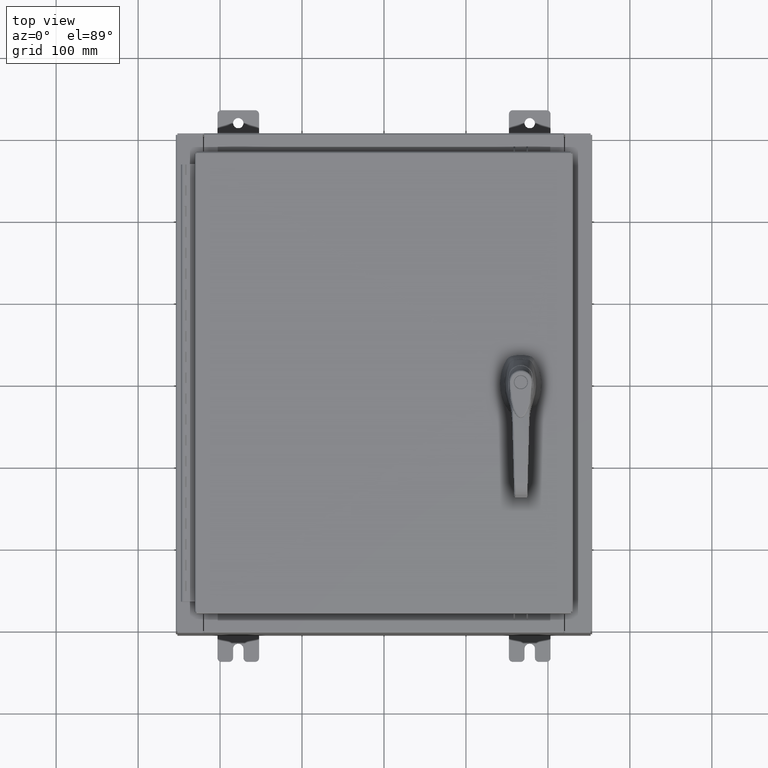
[diagram: clean part render]
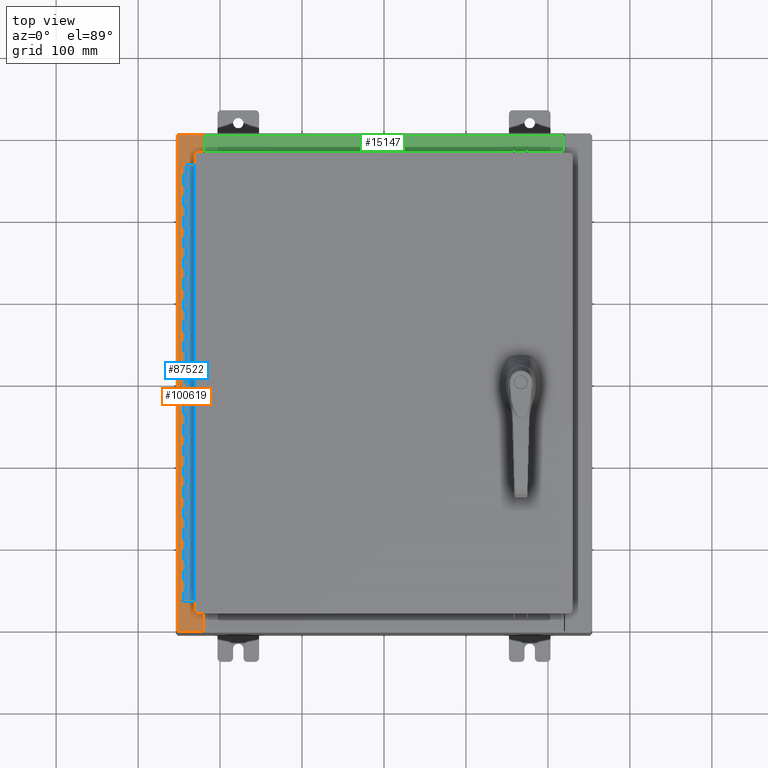
[diagram: same view with three faces highlighted in distinct colors, each labeled with its STEP entity id]
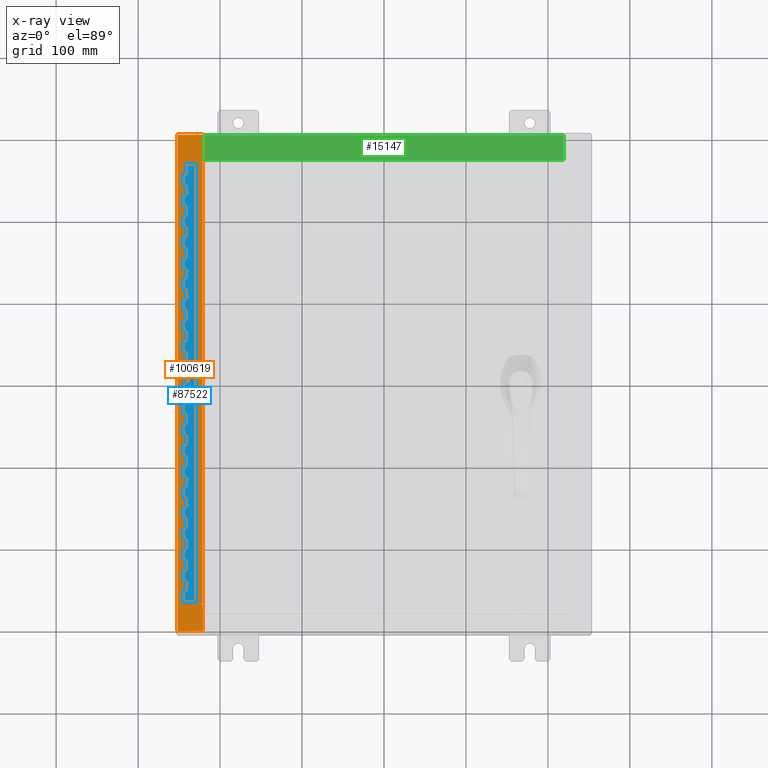
[diagram: x-ray of the same camera — body ghosted, the three highlighted faces saturated]
A machine part, top view with three faces highlighted in distinct colors.
The next image is the same camera in x-ray (body ghosted, the three faces saturated) — at least one of them is partly hidden behind the body in this view.
Their STEP definitions:

[orange] entity #100619 — the highlighted planar face has unit normal (0, 0, -1).
#132 = AXIS2_PLACEMENT_3D ( 'NONE', #17925, #79006, #26818 ) ;
#1032 = CARTESIAN_POINT ( 'NONE',  ( -8.750050000000030100, 10.63109999999999800, 7.925300000000008900 ) ) ;
#2446 = LINE ( 'NONE', #64907, #69604 ) ;
#3976 = DIRECTION ( 'NONE',  ( 1.000000000000000000, 0.0000000000000000000, 0.0000000000000000000 ) ) ;
#7071 = DIRECTION ( 'NONE',  ( 1.000000000000000000, 0.0000000000000000000, 0.0000000000000000000 ) ) ;
#7605 = DIRECTION ( 'NONE',  ( -1.000000000000000000, 0.0000000000000000000, 0.0000000000000000000 ) ) ;
#7962 = LINE ( 'NONE', #22063, #54593 ) ;
#8975 = DIRECTION ( 'NONE',  ( -1.000000000000000000, 0.0000000000000000000, -7.132762385546378400E-015 ) ) ;
#9460 = DIRECTION ( 'NONE',  ( 1.000000000000000000, 1.783190596386595000E-015, 7.132762385546378400E-015 ) ) ;
#9786 = ORIENTED_EDGE ( 'NONE', *, *, #27281, .T. ) ;
#10655 = LINE ( 'NONE', #12887, #109287 ) ;
#12458 = CARTESIAN_POINT ( 'NONE',  ( -9.912300000000028500, -11.92529999999999600, 7.925300000000000000 ) ) ;
#12887 = CARTESIAN_POINT ( 'NONE',  ( -8.750050000000030100, 10.59375000000000000, 7.925300000000008900 ) ) ;
#13064 = ORIENTED_EDGE ( 'NONE', *, *, #97483, .F. ) ;
#16320 = EDGE_CURVE ( 'NONE', #75074, #93818, #101345, .T. ) ;
#17925 = CARTESIAN_POINT ( 'NONE',  ( -8.750050000000030100, 10.61242500000000000, 7.925300000000008900 ) ) ;
#17928 = ORIENTED_EDGE ( 'NONE', *, *, #71573, .T. ) ;
#18241 = VECTOR ( 'NONE', #9460, 39.37007874015748100 ) ;
#18592 = VECTOR ( 'NONE', #41529, 39.37007874015748100 ) ;
#21600 = VERTEX_POINT ( 'NONE', #92635 ) ;
#21685 = AXIS2_PLACEMENT_3D ( 'NONE', #35175, #61434, #8975 ) ;
#22063 = CARTESIAN_POINT ( 'NONE',  ( -8.712700000000030100, 10.59375000000000200, 7.925300000000008900 ) ) ;
#24022 = ORIENTED_EDGE ( 'NONE', *, *, #43438, .F. ) ;
#26157 = ORIENTED_EDGE ( 'NONE', *, *, #34889, .T. ) ;
#26818 = DIRECTION ( 'NONE',  ( 1.000000000000000000, 0.0000000000000000000, 0.0000000000000000000 ) ) ;
#27281 = EDGE_CURVE ( 'NONE', #105447, #49525, #41635, .T. ) ;
#27900 = CARTESIAN_POINT ( 'NONE',  ( -8.699700000000028400, 10.63110000000000200, 7.925300000000008900 ) ) ;
#29650 = EDGE_CURVE ( 'NONE', #105447, #68000, #90405, .T. ) ;
#30752 = LINE ( 'NONE', #112504, #97700 ) ;
#31509 = VECTOR ( 'NONE', #97764, 39.37007874015748100 ) ;
#32874 = CIRCLE ( 'NONE', #106388, 0.01867499999999949400 ) ;
#32898 = ORIENTED_EDGE ( 'NONE', *, *, #89551, .T. ) ;
#34889 = EDGE_CURVE ( 'NONE', #67996, #21600, #108958, .T. ) ;
#35175 = CARTESIAN_POINT ( 'NONE',  ( -5.679009539018279500E-014, 0.0000000000000000000, 7.925300000000071100 ) ) ;
#41529 = DIRECTION ( 'NONE',  ( 0.0000000000000000000, 1.000000000000000000, 0.0000000000000000000 ) ) ;
#41635 = LINE ( 'NONE', #44427, #18241 ) ;
#43438 = EDGE_CURVE ( 'NONE', #93818, #76260, #10655, .T. ) ;
#43867 = VERTEX_POINT ( 'NONE', #88067 ) ;
#44427 = CARTESIAN_POINT ( 'NONE',  ( -3.552501257109376000E-014, -11.92529999999998000, 7.925300000000071100 ) ) ;
#45969 = DIRECTION ( 'NONE',  ( 0.0000000000000000000, 1.000000000000000000, 0.0000000000000000000 ) ) ;
#49525 = VERTEX_POINT ( 'NONE', #82046 ) ;
#49920 = ORIENTED_EDGE ( 'NONE', *, *, #63145, .F. ) ;
#50011 = CARTESIAN_POINT ( 'NONE',  ( -9.912300000000028500, 11.92530000000000000, 7.925300000000000000 ) ) ;
#50824 = CARTESIAN_POINT ( 'NONE',  ( -8.750050000000030100, -10.61242499999999300, 7.925300000000008900 ) ) ;
#50953 = CARTESIAN_POINT ( 'NONE',  ( -8.750050000000030100, -10.63109999999999300, 7.925300000000008900 ) ) ;
#52666 = PLANE ( 'NONE',  #21685 ) ;
#54593 = VECTOR ( 'NONE', #91926, 39.37007874015748100 ) ;
#56412 = EDGE_LOOP ( 'NONE', ( #99771, #26157, #17928, #79602, #9786, #32898, #94561, #13064, #49920, #113704, #24022, #63625 ) ) ;
#56984 = EDGE_CURVE ( 'NONE', #76260, #109835, #7962, .T. ) ;
#58114 = VECTOR ( 'NONE', #7071, 39.37007874015748100 ) ;
#58337 = FACE_OUTER_BOUND ( 'NONE', #56412, .T. ) ;
#59582 = DIRECTION ( 'NONE',  ( 1.000000000000000000, 0.0000000000000000000, 0.0000000000000000000 ) ) ;
#61434 = DIRECTION ( 'NONE',  ( 7.132762385546378400E-015, 0.0000000000000000000, -1.000000000000000000 ) ) ;
#63145 = EDGE_CURVE ( 'NONE', #109835, #68127, #30752, .T. ) ;
#63625 = ORIENTED_EDGE ( 'NONE', *, *, #16320, .F. ) ;
#64458 = VECTOR ( 'NONE', #92362, 39.37007874015748100 ) ;
#64907 = CARTESIAN_POINT ( 'NONE',  ( -5.679009539018279500E-014, 11.92530000000000000, 7.925300000000071100 ) ) ;
#65291 = DIRECTION ( 'NONE',  ( -1.000000000000000000, 0.0000000000000000000, -7.132762385546378400E-015 ) ) ;
#66190 = CARTESIAN_POINT ( 'NONE',  ( -8.712700000000030100, -10.59374999999999300, 7.925300000000008900 ) ) ;
#67996 = VERTEX_POINT ( 'NONE', #100051 ) ;
#68000 = VERTEX_POINT ( 'NONE', #50011 ) ;
#68127 = VERTEX_POINT ( 'NONE', #103839 ) ;
#68337 = CARTESIAN_POINT ( 'NONE',  ( -8.750050000000030100, -10.63109999999999300, 7.925300000000008900 ) ) ;
#69604 = VECTOR ( 'NONE', #65291, 39.37007874015748100 ) ;
#71573 = EDGE_CURVE ( 'NONE', #21600, #68000, #2446, .T. ) ;
#75074 = VERTEX_POINT ( 'NONE', #1032 ) ;
#76260 = VERTEX_POINT ( 'NONE', #85463 ) ;
#77807 = LINE ( 'NONE', #27900, #31509 ) ;
#79006 = DIRECTION ( 'NONE',  ( -7.132762385546378400E-015, -0.0000000000000000000, 1.000000000000000000 ) ) ;
#79602 = ORIENTED_EDGE ( 'NONE', *, *, #29650, .F. ) ;
#80604 = LINE ( 'NONE', #98224, #101257 ) ;
#80991 = EDGE_CURVE ( 'NONE', #93451, #43867, #101934, .T. ) ;
#82046 = CARTESIAN_POINT ( 'NONE',  ( -8.699700000000028400, -11.92529999999999500, 7.925300000000008900 ) ) ;
#83505 = CARTESIAN_POINT ( 'NONE',  ( -9.912300000000028500, 11.92530000000000000, 7.925300000000000000 ) ) ;
#85463 = CARTESIAN_POINT ( 'NONE',  ( -8.712700000000030100, 10.59375000000000000, 7.925300000000008900 ) ) ;
#88067 = CARTESIAN_POINT ( 'NONE',  ( -8.699700000000028400, -10.63109999999999300, 7.925300000000008900 ) ) ;
#89551 = EDGE_CURVE ( 'NONE', #49525, #43867, #80604, .T. ) ;
#90405 = LINE ( 'NONE', #83505, #64458 ) ;
#91926 = DIRECTION ( 'NONE',  ( -0.0000000000000000000, -1.000000000000000000, -0.0000000000000000000 ) ) ;
#92362 = DIRECTION ( 'NONE',  ( -0.0000000000000000000, 1.000000000000000000, -0.0000000000000000000 ) ) ;
#92635 = CARTESIAN_POINT ( 'NONE',  ( -8.699700000000028400, 11.92530000000000000, 7.925300000000008900 ) ) ;
#93451 = VERTEX_POINT ( 'NONE', #50953 ) ;
#93748 = CARTESIAN_POINT ( 'NONE',  ( -8.699700000000028400, 0.0000000000000000000, 7.925300000000008900 ) ) ;
#93818 = VERTEX_POINT ( 'NONE', #110023 ) ;
#94561 = ORIENTED_EDGE ( 'NONE', *, *, #80991, .F. ) ;
#95804 = EDGE_CURVE ( 'NONE', #67996, #75074, #77807, .T. ) ;
#97483 = EDGE_CURVE ( 'NONE', #68127, #93451, #32874, .T. ) ;
#97700 = VECTOR ( 'NONE', #7605, 39.37007874015748100 ) ;
#97764 = DIRECTION ( 'NONE',  ( -1.000000000000000000, -4.340572780399910900E-014, 0.0000000000000000000 ) ) ;
#98224 = CARTESIAN_POINT ( 'NONE',  ( -8.699700000000028400, 0.0000000000000000000, 7.925300000000008900 ) ) ;
#99771 = ORIENTED_EDGE ( 'NONE', *, *, #95804, .F. ) ;
#100051 = CARTESIAN_POINT ( 'NONE',  ( -8.699700000000028400, 10.63110000000000200, 7.925300000000008900 ) ) ;
#100619 = ADVANCED_FACE ( 'NONE', ( #58337 ), #52666, .F. ) ;
#101257 = VECTOR ( 'NONE', #45969, 39.37007874015748100 ) ;
#101345 = CIRCLE ( 'NONE', #132, 0.01867499999999949400 ) ;
#101934 = LINE ( 'NONE', #68337, #58114 ) ;
#103839 = CARTESIAN_POINT ( 'NONE',  ( -8.750050000000030100, -10.59374999999999300, 7.925300000000008900 ) ) ;
#105447 = VERTEX_POINT ( 'NONE', #12458 ) ;
#106388 = AXIS2_PLACEMENT_3D ( 'NONE', #50824, #111989, #59582 ) ;
#108958 = LINE ( 'NONE', #93748, #18592 ) ;
#109287 = VECTOR ( 'NONE', #3976, 39.37007874015748100 ) ;
#109835 = VERTEX_POINT ( 'NONE', #66190 ) ;
#110023 = CARTESIAN_POINT ( 'NONE',  ( -8.750050000000030100, 10.59375000000000000, 7.925300000000008900 ) ) ;
#111989 = DIRECTION ( 'NONE',  ( -7.132762385546378400E-015, -0.0000000000000000000, 1.000000000000000000 ) ) ;
#112504 = CARTESIAN_POINT ( 'NONE',  ( -8.712700000000030100, -10.59374999999999300, 7.925300000000008900 ) ) ;
#113704 = ORIENTED_EDGE ( 'NONE', *, *, #56984, .F. ) ;

[blue] entity #87522 — the highlighted planar face has unit normal (-0, -0, 1).
#23 = ORIENTED_EDGE ( 'NONE', *, *, #20417, .F. ) ;
#262 = ORIENTED_EDGE ( 'NONE', *, *, #88565, .F. ) ;
#270 = CARTESIAN_POINT ( 'NONE',  ( -0.6869999999999978300, 0.6754999999999996600, 0.0000000000000000000 ) ) ;
#624 = VECTOR ( 'NONE', #9483, 39.37007874015748100 ) ;
#759 = LINE ( 'NONE', #71837, #111835 ) ;
#965 = ORIENTED_EDGE ( 'NONE', *, *, #31173, .F. ) ;
#1111 = ORIENTED_EDGE ( 'NONE', *, *, #77056, .F. ) ;
#1219 = DIRECTION ( 'NONE',  ( 0.0000000000000000000, -0.0000000000000000000, -1.000000000000000000 ) ) ;
#1270 = LINE ( 'NONE', #26786, #91713 ) ;
#1325 = CARTESIAN_POINT ( 'NONE',  ( -0.6869999999999978300, 0.6754999999999996600, -21.00000000000000000 ) ) ;
#1473 = EDGE_CURVE ( 'NONE', #16659, #15776, #1270, .T. ) ;
#1770 = ORIENTED_EDGE ( 'NONE', *, *, #41053, .F. ) ;
#2193 = EDGE_CURVE ( 'NONE', #61879, #11695, #9523, .T. ) ;
#2302 = LINE ( 'NONE', #101420, #43617 ) ;
#2531 = DIRECTION ( 'NONE',  ( 3.389037039080723100E-015, 1.000000000000000000, -0.0000000000000000000 ) ) ;
#2552 = CARTESIAN_POINT ( 'NONE',  ( -0.6869999999999982800, 0.5504999999999997700, -4.500000000000000000 ) ) ;
#2626 = CARTESIAN_POINT ( 'NONE',  ( -0.6869999999999982800, 0.5504999999999997700, -19.50000000000000000 ) ) ;
#2729 = EDGE_CURVE ( 'NONE', #25672, #103506, #110806, .T. ) ;
#3007 = LINE ( 'NONE', #1325, #26494 ) ;
#3030 = VERTEX_POINT ( 'NONE', #17477 ) ;
#3082 = CARTESIAN_POINT ( 'NONE',  ( -0.6869999999999978300, 0.6754999999999996600, -21.00000000000000000 ) ) ;
#3320 = VECTOR ( 'NONE', #39002, 39.37007874015748100 ) ;
#3749 = VERTEX_POINT ( 'NONE', #52255 ) ;
#3995 = VECTOR ( 'NONE', #13692, 39.37007874015748100 ) ;
#4174 = LINE ( 'NONE', #59647, #73992 ) ;
#4316 = ORIENTED_EDGE ( 'NONE', *, *, #39468, .F. ) ;
#4364 = CARTESIAN_POINT ( 'NONE',  ( -0.6869999999999978300, 0.6754999999999996600, -6.499999999999999100 ) ) ;
#4399 = ORIENTED_EDGE ( 'NONE', *, *, #66099, .T. ) ;
#4887 = CARTESIAN_POINT ( 'NONE',  ( -0.6869999999999978300, 0.6754999999999996600, -14.00000000000000000 ) ) ;
#5274 = CARTESIAN_POINT ( 'NONE',  ( -0.6869999999999973900, 0.8004999999999995500, -9.500000000000000000 ) ) ;
#5420 = ORIENTED_EDGE ( 'NONE', *, *, #84962, .T. ) ;
#5517 = EDGE_CURVE ( 'NONE', #85069, #12043, #35409, .T. ) ;
#5555 = LINE ( 'NONE', #79864, #44085 ) ;
#5611 = ORIENTED_EDGE ( 'NONE', *, *, #18185, .F. ) ;
#5706 = ORIENTED_EDGE ( 'NONE', *, *, #32379, .F. ) ;
#5755 = CARTESIAN_POINT ( 'NONE',  ( -0.6869999999999982800, 0.5504999999999997700, -20.00000000000000000 ) ) ;
#5835 = CARTESIAN_POINT ( 'NONE',  ( -0.6869999999999978300, 0.6754999999999996600, -18.50000000000000000 ) ) ;
#5872 = LINE ( 'NONE', #21435, #75663 ) ;
#5877 = EDGE_CURVE ( 'NONE', #24980, #32617, #62626, .T. ) ;
#5982 = LINE ( 'NONE', #83418, #99142 ) ;
#6203 = LINE ( 'NONE', #44414, #50184 ) ;
#6755 = ORIENTED_EDGE ( 'NONE', *, *, #8772, .F. ) ;
#6823 = CARTESIAN_POINT ( 'NONE',  ( -0.6869999999999978300, 0.6754999999999996600, -21.00000000000000000 ) ) ;
#7036 = DIRECTION ( 'NONE',  ( -3.389037039080723100E-015, -1.000000000000000000, 0.0000000000000000000 ) ) ;
#7261 = DIRECTION ( 'NONE',  ( 0.0000000000000000000, -0.0000000000000000000, -1.000000000000000000 ) ) ;
#7369 = CARTESIAN_POINT ( 'NONE',  ( -0.6869999999999973900, 0.8004999999999995500, -3.500000000000000000 ) ) ;
#7991 = DIRECTION ( 'NONE',  ( 3.389037039080723100E-015, 1.000000000000000000, -0.0000000000000000000 ) ) ;
#7994 = VECTOR ( 'NONE', #41358, 39.37007874015748100 ) ;
#8529 = CARTESIAN_POINT ( 'NONE',  ( -0.6869999999999973900, 0.8004999999999995500, -6.499999999999999100 ) ) ;
#8772 = EDGE_CURVE ( 'NONE', #57762, #25874, #25355, .T. ) ;
#8883 = CARTESIAN_POINT ( 'NONE',  ( -0.6869999999999982800, 0.5504999999999997700, -0.5000000000000000000 ) ) ;
#9269 = CARTESIAN_POINT ( 'NONE',  ( -0.6869999999999982800, 0.5504999999999997700, -14.99999999999999800 ) ) ;
#9479 = ORIENTED_EDGE ( 'NONE', *, *, #97605, .F. ) ;
#9483 = DIRECTION ( 'NONE',  ( 3.389037039080723100E-015, 1.000000000000000000, -0.0000000000000000000 ) ) ;
#9523 = LINE ( 'NONE', #59286, #76503 ) ;
#9863 = ORIENTED_EDGE ( 'NONE', *, *, #52098, .F. ) ;
#10140 = DIRECTION ( 'NONE',  ( 0.0000000000000000000, 0.0000000000000000000, 1.000000000000000000 ) ) ;
#10258 = DIRECTION ( 'NONE',  ( 0.0000000000000000000, 0.0000000000000000000, 1.000000000000000000 ) ) ;
#10621 = CARTESIAN_POINT ( 'NONE',  ( -0.6869999999999978300, 0.6754999999999996600, -2.999999999999999600 ) ) ;
#10676 = LINE ( 'NONE', #40688, #77646 ) ;
#10793 = EDGE_CURVE ( 'NONE', #107505, #22897, #26484, .T. ) ;
#11309 = VERTEX_POINT ( 'NONE', #60811 ) ;
#11695 = VERTEX_POINT ( 'NONE', #111737 ) ;
#11704 = DIRECTION ( 'NONE',  ( 0.0000000000000000000, 0.0000000000000000000, 1.000000000000000000 ) ) ;
#11788 = LINE ( 'NONE', #53129, #96603 ) ;
#11860 = ORIENTED_EDGE ( 'NONE', *, *, #60110, .F. ) ;
#11973 = VERTEX_POINT ( 'NONE', #57926 ) ;
#12043 = VERTEX_POINT ( 'NONE', #4887 ) ;
#12070 = DIRECTION ( 'NONE',  ( 0.0000000000000000000, 0.0000000000000000000, 1.000000000000000000 ) ) ;
#12119 = LINE ( 'NONE', #66851, #73588 ) ;
#12214 = VECTOR ( 'NONE', #104314, 39.37007874015748100 ) ;
#12523 = ORIENTED_EDGE ( 'NONE', *, *, #98644, .T. ) ;
#12752 = ORIENTED_EDGE ( 'NONE', *, *, #14519, .T. ) ;
#12981 = VERTEX_POINT ( 'NONE', #42004 ) ;
#13310 = ORIENTED_EDGE ( 'NONE', *, *, #63630, .F. ) ;
#13610 = CARTESIAN_POINT ( 'NONE',  ( -0.6869999999999973900, 0.8004999999999995500, -6.000000000000000900 ) ) ;
#13664 = CARTESIAN_POINT ( 'NONE',  ( -0.6869999999999982800, 0.5504999999999997700, -2.500000000000000000 ) ) ;
#13683 = VECTOR ( 'NONE', #106681, 39.37007874015748100 ) ;
#13692 = DIRECTION ( 'NONE',  ( 0.0000000000000000000, 0.0000000000000000000, 1.000000000000000000 ) ) ;
#13791 = VECTOR ( 'NONE', #7036, 39.37007874015748100 ) ;
#13795 = VECTOR ( 'NONE', #40139, 39.37007874015748100 ) ;
#13896 = DIRECTION ( 'NONE',  ( 3.369016658928398200E-015, 1.000000000000000000, 0.0000000000000000000 ) ) ;
#13902 = VECTOR ( 'NONE', #35645, 39.37007874015748100 ) ;
#13994 = ORIENTED_EDGE ( 'NONE', *, *, #5517, .F. ) ;
#14011 = EDGE_CURVE ( 'NONE', #112896, #112560, #112561, .T. ) ;
#14174 = ORIENTED_EDGE ( 'NONE', *, *, #40196, .F. ) ;
#14270 = VERTEX_POINT ( 'NONE', #54869 ) ;
#14470 = CARTESIAN_POINT ( 'NONE',  ( -0.6869999999999982800, 0.5504999999999997700, -12.49999999999999800 ) ) ;
#14519 = EDGE_CURVE ( 'NONE', #17870, #109262, #44162, .T. ) ;
#14721 = CARTESIAN_POINT ( 'NONE',  ( -0.6869999999999978300, 0.6754999999999996600, -12.49999999999999800 ) ) ;
#14727 = VERTEX_POINT ( 'NONE', #104373 ) ;
#14846 = CARTESIAN_POINT ( 'NONE',  ( -0.6869999999999973900, 0.8004999999999995500, -19.00000000000000000 ) ) ;
#15196 = VERTEX_POINT ( 'NONE', #56855 ) ;
#15356 = VECTOR ( 'NONE', #109604, 39.37007874015748100 ) ;
#15427 = CARTESIAN_POINT ( 'NONE',  ( -0.6869999999999978300, 0.6754999999999996600, -15.50000000000000000 ) ) ;
#15434 = LINE ( 'NONE', #65911, #105761 ) ;
#15776 = VERTEX_POINT ( 'NONE', #51787 ) ;
#16032 = CARTESIAN_POINT ( 'NONE',  ( -0.6869999999999973900, 0.8004999999999995500, -1.000000000000000000 ) ) ;
#16050 = VECTOR ( 'NONE', #57672, 39.37007874015748100 ) ;
#16068 = DIRECTION ( 'NONE',  ( 0.0000000000000000000, 0.0000000000000000000, 1.000000000000000000 ) ) ;
#16128 = ORIENTED_EDGE ( 'NONE', *, *, #5877, .F. ) ;
#16151 = VECTOR ( 'NONE', #64331, 39.37007874015748100 ) ;
#16471 = LINE ( 'NONE', #82226, #106828 ) ;
#16659 = VERTEX_POINT ( 'NONE', #96665 ) ;
#16690 = CARTESIAN_POINT ( 'NONE',  ( -0.6869999999999973900, 0.8004999999999995500, -4.500000000000000000 ) ) ;
#16770 = EDGE_CURVE ( 'NONE', #24980, #90172, #50701, .T. ) ;
#16845 = CARTESIAN_POINT ( 'NONE',  ( -0.6869999999999982800, 0.5504999999999997700, -18.50000000000000000 ) ) ;
#16913 = LINE ( 'NONE', #7369, #104527 ) ;
#17003 = ORIENTED_EDGE ( 'NONE', *, *, #20234, .F. ) ;
#17016 = ORIENTED_EDGE ( 'NONE', *, *, #75772, .T. ) ;
#17030 = CARTESIAN_POINT ( 'NONE',  ( -0.6869999999999982800, 0.5504999999999997700, -2.000000000000000000 ) ) ;
#17161 = CARTESIAN_POINT ( 'NONE',  ( -0.6869999999999978300, 0.6754999999999996600, -10.00000000000000000 ) ) ;
#17477 = CARTESIAN_POINT ( 'NONE',  ( -0.6869999999999978300, 0.6754999999999996600, -7.000000000000000000 ) ) ;
#17870 = VERTEX_POINT ( 'NONE', #34311 ) ;
#17961 = VECTOR ( 'NONE', #68427, 39.37007874015748100 ) ;
#18161 = CARTESIAN_POINT ( 'NONE',  ( -0.6869999999999973900, 0.8004999999999995500, -17.50000000000000000 ) ) ;
#18185 = EDGE_CURVE ( 'NONE', #49322, #26138, #83230, .T. ) ;
#18291 = DIRECTION ( 'NONE',  ( 0.0000000000000000000, 0.0000000000000000000, 1.000000000000000000 ) ) ;
#18553 = VERTEX_POINT ( 'NONE', #44887 ) ;
#18555 = EDGE_CURVE ( 'NONE', #66633, #34569, #110724, .T. ) ;
#18715 = CARTESIAN_POINT ( 'NONE',  ( -0.6869999999999978300, 0.6754999999999996600, -11.99999999999999800 ) ) ;
#18871 = EDGE_CURVE ( 'NONE', #110598, #15196, #12119, .T. ) ;
#18898 = ORIENTED_EDGE ( 'NONE', *, *, #89121, .F. ) ;
#19561 = VECTOR ( 'NONE', #112364, 39.37007874015748100 ) ;
#19716 = VECTOR ( 'NONE', #44490, 39.37007874015748100 ) ;
#19779 = VECTOR ( 'NONE', #72208, 39.37007874015748100 ) ;
#19886 = CARTESIAN_POINT ( 'NONE',  ( -0.6869999999999982800, 0.5504999999999997700, -16.00000000000000000 ) ) ;
#20009 = VERTEX_POINT ( 'NONE', #61976 ) ;
#20223 = CARTESIAN_POINT ( 'NONE',  ( -0.6869999999999978300, 0.6754999999999996600, -21.00000000000000000 ) ) ;
#20234 = EDGE_CURVE ( 'NONE', #14270, #109312, #68204, .T. ) ;
#20390 = VERTEX_POINT ( 'NONE', #92886 ) ;
#20417 = EDGE_CURVE ( 'NONE', #20009, #24784, #10676, .T. ) ;
#20461 = VECTOR ( 'NONE', #35856, 39.37007874015748100 ) ;
#20745 = VERTEX_POINT ( 'NONE', #4364 ) ;
#20779 = VERTEX_POINT ( 'NONE', #13664 ) ;
#20862 = DIRECTION ( 'NONE',  ( 0.0000000000000000000, 0.0000000000000000000, 1.000000000000000000 ) ) ;
#21023 = ORIENTED_EDGE ( 'NONE', *, *, #46432, .T. ) ;
#21086 = VERTEX_POINT ( 'NONE', #17030 ) ;
#21435 = CARTESIAN_POINT ( 'NONE',  ( -0.6869999999999982800, 0.5504999999999997700, -5.500000000000000000 ) ) ;
#21658 = DIRECTION ( 'NONE',  ( 0.0000000000000000000, -0.0000000000000000000, -1.000000000000000000 ) ) ;
#21669 = CARTESIAN_POINT ( 'NONE',  ( -0.6869999999999978300, 0.6754999999999996600, -21.00000000000000000 ) ) ;
#22022 = LINE ( 'NONE', #99984, #45347 ) ;
#22542 = CARTESIAN_POINT ( 'NONE',  ( -0.6869999999999978300, 0.6754999999999996600, -21.00000000000000000 ) ) ;
#22636 = LINE ( 'NONE', #71775, #37767 ) ;
#22696 = LINE ( 'NONE', #100697, #110261 ) ;
#22827 = LINE ( 'NONE', #18161, #113124 ) ;
#22897 = VERTEX_POINT ( 'NONE', #72267 ) ;
#23002 = EDGE_CURVE ( 'NONE', #94810, #36871, #84144, .T. ) ;
#23162 = ORIENTED_EDGE ( 'NONE', *, *, #18555, .F. ) ;
#23378 = LINE ( 'NONE', #44173, #49415 ) ;
#23598 = ORIENTED_EDGE ( 'NONE', *, *, #45643, .F. ) ;
#23696 = EDGE_CURVE ( 'NONE', #31963, #26635, #22636, .T. ) ;
#23766 = ORIENTED_EDGE ( 'NONE', *, *, #2193, .F. ) ;
#24103 = VERTEX_POINT ( 'NONE', #108052 ) ;
#24244 = LINE ( 'NONE', #112008, #70660 ) ;
#24501 = EDGE_CURVE ( 'NONE', #106063, #111804, #54261, .T. ) ;
#24701 = VERTEX_POINT ( 'NONE', #84798 ) ;
#24784 = VERTEX_POINT ( 'NONE', #17161 ) ;
#24980 = VERTEX_POINT ( 'NONE', #74732 ) ;
#25355 = LINE ( 'NONE', #71484, #86767 ) ;
#25398 = EDGE_CURVE ( 'NONE', #49522, #47869, #22696, .T. ) ;
#25672 = VERTEX_POINT ( 'NONE', #96770 ) ;
#25874 = VERTEX_POINT ( 'NONE', #85143 ) ;
#26138 = VERTEX_POINT ( 'NONE', #105098 ) ;
#26178 = LINE ( 'NONE', #14470, #69851 ) ;
#26232 = EDGE_CURVE ( 'NONE', #20745, #20390, #37715, .T. ) ;
#26300 = CARTESIAN_POINT ( 'NONE',  ( -0.6869999999999978300, 0.6754999999999996600, -21.00000000000000000 ) ) ;
#26428 = CARTESIAN_POINT ( 'NONE',  ( -0.6869999999999998300, 0.07549999999999991400, 0.0000000000000000000 ) ) ;
#26484 = LINE ( 'NONE', #34830, #64703 ) ;
#26494 = VECTOR ( 'NONE', #10258, 39.37007874015748100 ) ;
#26635 = VERTEX_POINT ( 'NONE', #71499 ) ;
#26674 = EDGE_CURVE ( 'NONE', #52810, #43298, #59415, .T. ) ;
#26786 = CARTESIAN_POINT ( 'NONE',  ( -0.6869999999999973900, 0.8004999999999995500, -11.00000000000000000 ) ) ;
#26829 = VECTOR ( 'NONE', #12070, 39.37007874015748100 ) ;
#26861 = VERTEX_POINT ( 'NONE', #57002 ) ;
#27211 = CARTESIAN_POINT ( 'NONE',  ( -0.6869999999999982800, 0.5504999999999997700, -16.50000000000000000 ) ) ;
#27343 = VECTOR ( 'NONE', #72054, 39.37007874015748100 ) ;
#27379 = VECTOR ( 'NONE', #35157, 39.37007874015748100 ) ;
#27470 = CARTESIAN_POINT ( 'NONE',  ( -0.6869999999999982800, 0.5504999999999997700, -3.500000000000000000 ) ) ;
#27478 = CARTESIAN_POINT ( 'NONE',  ( -0.6869999999999998300, 0.07549999999999991400, -21.00000000000000000 ) ) ;
#27829 = EDGE_CURVE ( 'NONE', #100997, #11973, #98896, .T. ) ;
#28327 = VECTOR ( 'NONE', #72999, 39.37007874015748100 ) ;
#28461 = DIRECTION ( 'NONE',  ( -3.389037039080723100E-015, -1.000000000000000000, 0.0000000000000000000 ) ) ;
#28527 = EDGE_CURVE ( 'NONE', #49522, #24701, #83649, .T. ) ;
#28543 = ORIENTED_EDGE ( 'NONE', *, *, #16770, .T. ) ;
#29823 = CARTESIAN_POINT ( 'NONE',  ( -0.6869999999999982800, 0.5504999999999997700, -1.499999999999999800 ) ) ;
#29869 = DIRECTION ( 'NONE',  ( -3.389037039080723100E-015, -1.000000000000000000, 0.0000000000000000000 ) ) ;
#29954 = DIRECTION ( 'NONE',  ( -3.389037039080723100E-015, -1.000000000000000000, 0.0000000000000000000 ) ) ;
#30020 = DIRECTION ( 'NONE',  ( 0.0000000000000000000, -0.0000000000000000000, -1.000000000000000000 ) ) ;
#30052 = VERTEX_POINT ( 'NONE', #37404 ) ;
#30142 = EDGE_CURVE ( 'NONE', #96698, #100957, #16471, .T. ) ;
#30233 = DIRECTION ( 'NONE',  ( 0.0000000000000000000, -0.0000000000000000000, -1.000000000000000000 ) ) ;
#30703 = DIRECTION ( 'NONE',  ( 3.389037039080723100E-015, 1.000000000000000000, -0.0000000000000000000 ) ) ;
#31173 = EDGE_CURVE ( 'NONE', #78388, #14270, #98448, .T. ) ;
#31192 = DIRECTION ( 'NONE',  ( 0.0000000000000000000, -0.0000000000000000000, -1.000000000000000000 ) ) ;
#31295 = CARTESIAN_POINT ( 'NONE',  ( -0.6869999999999973900, 0.8004999999999995500, -2.500000000000000000 ) ) ;
#31432 = EDGE_CURVE ( 'NONE', #15196, #78170, #73680, .T. ) ;
#31689 = ORIENTED_EDGE ( 'NONE', *, *, #113777, .F. ) ;
#31906 = VERTEX_POINT ( 'NONE', #56715 ) ;
#31963 = VERTEX_POINT ( 'NONE', #57461 ) ;
#32370 = ORIENTED_EDGE ( 'NONE', *, *, #2729, .F. ) ;
#32379 = EDGE_CURVE ( 'NONE', #39531, #66282, #50464, .T. ) ;
#32617 = VERTEX_POINT ( 'NONE', #83236 ) ;
#32923 = CARTESIAN_POINT ( 'NONE',  ( -0.6869999999999973900, 0.8004999999999995500, -20.50000000000000400 ) ) ;
#33164 = ORIENTED_EDGE ( 'NONE', *, *, #89165, .F. ) ;
#33306 = CARTESIAN_POINT ( 'NONE',  ( -0.6869999999999978300, 0.6754999999999996600, -21.00000000000000000 ) ) ;
#33372 = EDGE_CURVE ( 'NONE', #44654, #20390, #106412, .T. ) ;
#33445 = ORIENTED_EDGE ( 'NONE', *, *, #56321, .T. ) ;
#34052 = EDGE_CURVE ( 'NONE', #57193, #66282, #24244, .T. ) ;
#34251 = VECTOR ( 'NONE', #90401, 39.37007874015748100 ) ;
#34311 = CARTESIAN_POINT ( 'NONE',  ( -0.6869999999999978300, 0.6754999999999996600, -19.50000000000000000 ) ) ;
#34443 = EDGE_CURVE ( 'NONE', #31963, #100997, #22827, .T. ) ;
#34569 = VERTEX_POINT ( 'NONE', #98051 ) ;
#34830 = CARTESIAN_POINT ( 'NONE',  ( -0.6869999999999982800, 0.5504999999999997700, -4.500000000000000000 ) ) ;
#35157 = DIRECTION ( 'NONE',  ( 0.0000000000000000000, 0.0000000000000000000, 1.000000000000000000 ) ) ;
#35254 = EDGE_CURVE ( 'NONE', #26138, #26635, #759, .T. ) ;
#35262 = VECTOR ( 'NONE', #106689, 39.37007874015748100 ) ;
#35409 = LINE ( 'NONE', #85319, #58554 ) ;
#35602 = ORIENTED_EDGE ( 'NONE', *, *, #26232, .T. ) ;
#35645 = DIRECTION ( 'NONE',  ( 0.0000000000000000000, -0.0000000000000000000, -1.000000000000000000 ) ) ;
#35709 = CARTESIAN_POINT ( 'NONE',  ( -0.6869999999999973900, 0.8004999999999995500, -7.000000000000000000 ) ) ;
#35769 = VECTOR ( 'NONE', #48751, 39.37007874015748100 ) ;
#35856 = DIRECTION ( 'NONE',  ( 3.389037039080723100E-015, 1.000000000000000000, -0.0000000000000000000 ) ) ;
#35898 = DIRECTION ( 'NONE',  ( 3.389037039080723100E-015, 1.000000000000000000, -0.0000000000000000000 ) ) ;
#36031 = EDGE_CURVE ( 'NONE', #94154, #70526, #16913, .T. ) ;
#36242 = ORIENTED_EDGE ( 'NONE', *, *, #87976, .F. ) ;
#36275 = CARTESIAN_POINT ( 'NONE',  ( -0.6869999999999982800, 0.5504999999999997700, -3.500000000000000000 ) ) ;
#36339 = DIRECTION ( 'NONE',  ( 0.0000000000000000000, -0.0000000000000000000, -1.000000000000000000 ) ) ;
#36871 = VERTEX_POINT ( 'NONE', #98924 ) ;
#37317 = VECTOR ( 'NONE', #52409, 39.37007874015748100 ) ;
#37404 = CARTESIAN_POINT ( 'NONE',  ( -0.6869999999999978300, 0.6754999999999996600, -14.49999999999999800 ) ) ;
#37696 = ORIENTED_EDGE ( 'NONE', *, *, #34052, .T. ) ;
#37715 = LINE ( 'NONE', #72832, #83970 ) ;
#37767 = VECTOR ( 'NONE', #97848, 39.37007874015748100 ) ;
#37850 = VECTOR ( 'NONE', #16068, 39.37007874015748100 ) ;
#38409 = CARTESIAN_POINT ( 'NONE',  ( -0.6869999999999982800, 0.5504999999999997700, -14.49999999999999800 ) ) ;
#38861 = DIRECTION ( 'NONE',  ( 0.0000000000000000000, -0.0000000000000000000, -1.000000000000000000 ) ) ;
#39002 = DIRECTION ( 'NONE',  ( 3.389037039080723100E-015, 1.000000000000000000, -0.0000000000000000000 ) ) ;
#39070 = VERTEX_POINT ( 'NONE', #38409 ) ;
#39468 = EDGE_CURVE ( 'NONE', #55393, #75874, #84897, .T. ) ;
#39531 = VERTEX_POINT ( 'NONE', #79730 ) ;
#39806 = LINE ( 'NONE', #105504, #80585 ) ;
#39992 = VECTOR ( 'NONE', #111891, 39.37007874015748100 ) ;
#40024 = DIRECTION ( 'NONE',  ( -3.389037039080723100E-015, -1.000000000000000000, 0.0000000000000000000 ) ) ;
#40139 = DIRECTION ( 'NONE',  ( -3.389037039080723100E-015, -1.000000000000000000, 0.0000000000000000000 ) ) ;
#40196 = EDGE_CURVE ( 'NONE', #57193, #24103, #23378, .T. ) ;
#40390 = CARTESIAN_POINT ( 'NONE',  ( -0.6869999999999978300, 0.6754999999999996600, -16.50000000000000000 ) ) ;
#40688 = CARTESIAN_POINT ( 'NONE',  ( -0.6869999999999973900, 0.8004999999999995500, -10.00000000000000000 ) ) ;
#40712 = EDGE_LOOP ( 'NONE', ( #9863, #67700, #96353, #52636, #17016, #108703, #64984, #262, #12752, #41554, #4316, #57859, #4399, #98683, #87647, #42965, #112541, #86536, #5611, #96159, #100117, #23598, #52016, #47907, #5420, #6755, #72512, #107069, #54944, #13994, #100008, #105425, #46473, #23162, #73008, #14174, #37696, #5706, #72796, #23766, #21023, #57947, #53801, #45119, #97104, #23, #112309, #33164, #85082, #102765, #17003, #965, #97434, #94232, #67260, #18898, #12523, #41189, #94334, #11860, #35602, #113205, #13310, #16128, #28543, #1111, #110545, #9479, #89441, #45299, #41583, #75922, #33445, #32370, #31689, #47721, #52726, #43255, #89568, #104813, #66689, #36242, #1770, #67563, #76784, #78312 ) ) ;
#40726 = DIRECTION ( 'NONE',  ( -3.389037039080723100E-015, -1.000000000000000000, 0.0000000000000000000 ) ) ;
#40763 = CARTESIAN_POINT ( 'NONE',  ( -0.6869999999999978300, 0.6754999999999996600, -8.000000000000000000 ) ) ;
#40823 = CARTESIAN_POINT ( 'NONE',  ( -0.6869999999999978300, 0.6754999999999996600, -2.000000000000000000 ) ) ;
#41053 = EDGE_CURVE ( 'NONE', #48763, #49606, #39806, .T. ) ;
#41189 = ORIENTED_EDGE ( 'NONE', *, *, #63312, .F. ) ;
#41358 = DIRECTION ( 'NONE',  ( 3.389037039080723100E-015, 1.000000000000000000, -0.0000000000000000000 ) ) ;
#41473 = CARTESIAN_POINT ( 'NONE',  ( -0.6869999999999982800, 0.5504999999999997700, -7.499999999999999100 ) ) ;
#41554 = ORIENTED_EDGE ( 'NONE', *, *, #90359, .F. ) ;
#41583 = ORIENTED_EDGE ( 'NONE', *, *, #50206, .F. ) ;
#41715 = DIRECTION ( 'NONE',  ( -3.389037039080723100E-015, -1.000000000000000000, 0.0000000000000000000 ) ) ;
#41770 = CARTESIAN_POINT ( 'NONE',  ( -0.6869999999999982800, 0.5504999999999997700, -4.000000000000000000 ) ) ;
#42004 = CARTESIAN_POINT ( 'NONE',  ( -0.6869999999999978300, 0.6754999999999996600, -9.500000000000000000 ) ) ;
#42005 = CARTESIAN_POINT ( 'NONE',  ( -0.6869999999999973900, 0.8004999999999995500, -18.50000000000000000 ) ) ;
#42098 = LINE ( 'NONE', #102974, #85671 ) ;
#42168 = DIRECTION ( 'NONE',  ( -3.389037039080723100E-015, -1.000000000000000000, 0.0000000000000000000 ) ) ;
#42965 = ORIENTED_EDGE ( 'NONE', *, *, #34443, .F. ) ;
#43152 = LINE ( 'NONE', #54728, #19779 ) ;
#43255 = ORIENTED_EDGE ( 'NONE', *, *, #105472, .F. ) ;
#43298 = VERTEX_POINT ( 'NONE', #46677 ) ;
#43617 = VECTOR ( 'NONE', #40726, 39.37007874015748100 ) ;
#43697 = DIRECTION ( 'NONE',  ( 0.0000000000000000000, 0.0000000000000000000, 1.000000000000000000 ) ) ;
#44085 = VECTOR ( 'NONE', #88678, 39.37007874015748100 ) ;
#44162 = LINE ( 'NONE', #67265, #111171 ) ;
#44173 = CARTESIAN_POINT ( 'NONE',  ( -0.6869999999999973900, 0.8004999999999995500, -12.49999999999999800 ) ) ;
#44414 = CARTESIAN_POINT ( 'NONE',  ( -0.6869999999999978300, 0.6754999999999996600, -21.00000000000000000 ) ) ;
#44490 = DIRECTION ( 'NONE',  ( 3.389037039080723100E-015, 1.000000000000000000, -0.0000000000000000000 ) ) ;
#44585 = DIRECTION ( 'NONE',  ( 1.000000000000000000, -3.369016658928398200E-015, 0.0000000000000000000 ) ) ;
#44654 = VERTEX_POINT ( 'NONE', #101193 ) ;
#44887 = CARTESIAN_POINT ( 'NONE',  ( -0.6869999999999978300, 0.6754999999999996600, -4.000000000000000000 ) ) ;
#45011 = DIRECTION ( 'NONE',  ( -3.389037039080723100E-015, -1.000000000000000000, 0.0000000000000000000 ) ) ;
#45054 = VERTEX_POINT ( 'NONE', #112661 ) ;
#45061 = VECTOR ( 'NONE', #7261, 39.37007874015748100 ) ;
#45119 = ORIENTED_EDGE ( 'NONE', *, *, #26674, .F. ) ;
#45299 = ORIENTED_EDGE ( 'NONE', *, *, #78601, .F. ) ;
#45305 = EDGE_CURVE ( 'NONE', #30052, #39070, #102255, .T. ) ;
#45329 = CARTESIAN_POINT ( 'NONE',  ( -0.6869999999999982800, 0.5504999999999997700, -1.499999999999999800 ) ) ;
#45347 = VECTOR ( 'NONE', #21658, 39.37007874015748100 ) ;
#45585 = CARTESIAN_POINT ( 'NONE',  ( -0.6869999999999982800, 0.5504999999999997700, -13.50000000000000000 ) ) ;
#45601 = CARTESIAN_POINT ( 'NONE',  ( -0.6869999999999978300, 0.6754999999999996600, -21.00000000000000000 ) ) ;
#45643 = EDGE_CURVE ( 'NONE', #111804, #3749, #42098, .T. ) ;
#46067 = CARTESIAN_POINT ( 'NONE',  ( -0.6869999999999978300, 0.6754999999999996600, -21.00000000000000000 ) ) ;
#46213 = CARTESIAN_POINT ( 'NONE',  ( -0.6869999999999982800, 0.5504999999999997700, -9.000000000000000000 ) ) ;
#46432 = EDGE_CURVE ( 'NONE', #61879, #15776, #11788, .T. ) ;
#46443 = EDGE_CURVE ( 'NONE', #94810, #34569, #6203, .T. ) ;
#46473 = ORIENTED_EDGE ( 'NONE', *, *, #46443, .T. ) ;
#46610 = CARTESIAN_POINT ( 'NONE',  ( -0.6869999999999973900, 0.8004999999999995500, -2.999999999999999600 ) ) ;
#46677 = CARTESIAN_POINT ( 'NONE',  ( -0.6869999999999982800, 0.5504999999999997700, -10.50000000000000000 ) ) ;
#47721 = ORIENTED_EDGE ( 'NONE', *, *, #69490, .F. ) ;
#47849 = CARTESIAN_POINT ( 'NONE',  ( -0.6869999999999982800, 0.5504999999999997700, -1.000000000000000000 ) ) ;
#47869 = VERTEX_POINT ( 'NONE', #29823 ) ;
#47907 = ORIENTED_EDGE ( 'NONE', *, *, #58133, .F. ) ;
#47999 = VERTEX_POINT ( 'NONE', #83543 ) ;
#48751 = DIRECTION ( 'NONE',  ( -3.389037039080723100E-015, -1.000000000000000000, 0.0000000000000000000 ) ) ;
#48763 = VERTEX_POINT ( 'NONE', #8883 ) ;
#48788 = LINE ( 'NONE', #71307, #69160 ) ;
#49099 = VECTOR ( 'NONE', #57806, 39.37007874015748100 ) ;
#49322 = VERTEX_POINT ( 'NONE', #27211 ) ;
#49415 = VECTOR ( 'NONE', #105264, 39.37007874015748100 ) ;
#49515 = AXIS2_PLACEMENT_3D ( 'NONE', #96831, #44585, #105665 ) ;
#49522 = VERTEX_POINT ( 'NONE', #55427 ) ;
#49606 = VERTEX_POINT ( 'NONE', #47849 ) ;
#49667 = VERTEX_POINT ( 'NONE', #65708 ) ;
#50078 = LINE ( 'NONE', #66555, #93737 ) ;
#50091 = LINE ( 'NONE', #99277, #26829 ) ;
#50184 = VECTOR ( 'NONE', #18291, 39.37007874015748100 ) ;
#50206 = EDGE_CURVE ( 'NONE', #70526, #69194, #90904, .T. ) ;
#50464 = LINE ( 'NONE', #107502, #112004 ) ;
#50612 = LINE ( 'NONE', #26300, #27379 ) ;
#50701 = LINE ( 'NONE', #22542, #3995 ) ;
#51001 = CARTESIAN_POINT ( 'NONE',  ( -0.6869999999999982800, 0.5504999999999997700, -8.500000000000000000 ) ) ;
#51206 = EDGE_CURVE ( 'NONE', #68719, #49322, #4174, .T. ) ;
#51209 = CARTESIAN_POINT ( 'NONE',  ( -0.6869999999999982800, 0.5504999999999997700, -14.49999999999999800 ) ) ;
#51631 = DIRECTION ( 'NONE',  ( 0.0000000000000000000, -0.0000000000000000000, -1.000000000000000000 ) ) ;
#51787 = CARTESIAN_POINT ( 'NONE',  ( -0.6869999999999978300, 0.6754999999999996600, -11.00000000000000000 ) ) ;
#52016 = ORIENTED_EDGE ( 'NONE', *, *, #24501, .F. ) ;
#52098 = EDGE_CURVE ( 'NONE', #98649, #112896, #97219, .T. ) ;
#52255 = CARTESIAN_POINT ( 'NONE',  ( -0.6869999999999978300, 0.6754999999999996600, -16.00000000000000000 ) ) ;
#52331 = EDGE_CURVE ( 'NONE', #31906, #11309, #22022, .T. ) ;
#52409 = DIRECTION ( 'NONE',  ( 0.0000000000000000000, 0.0000000000000000000, 1.000000000000000000 ) ) ;
#52636 = ORIENTED_EDGE ( 'NONE', *, *, #59217, .F. ) ;
#52726 = ORIENTED_EDGE ( 'NONE', *, *, #89981, .T. ) ;
#52810 = VERTEX_POINT ( 'NONE', #62465 ) ;
#52815 = CARTESIAN_POINT ( 'NONE',  ( -0.6869999999999978300, 0.6754999999999996600, -11.50000000000000000 ) ) ;
#53129 = CARTESIAN_POINT ( 'NONE',  ( -0.6869999999999978300, 0.6754999999999996600, -21.00000000000000000 ) ) ;
#53136 = CARTESIAN_POINT ( 'NONE',  ( -0.6869999999999982800, 0.5504999999999997700, -14.00000000000000000 ) ) ;
#53428 = LINE ( 'NONE', #5274, #97164 ) ;
#53540 = LINE ( 'NONE', #20223, #56255 ) ;
#53801 = ORIENTED_EDGE ( 'NONE', *, *, #110468, .F. ) ;
#54261 = LINE ( 'NONE', #88712, #28327 ) ;
#54357 = DIRECTION ( 'NONE',  ( 3.389037039080723100E-015, 1.000000000000000000, -0.0000000000000000000 ) ) ;
#54501 = LINE ( 'NONE', #82171, #16151 ) ;
#54557 = CARTESIAN_POINT ( 'NONE',  ( -0.6869999999999978300, 0.6754999999999996600, -13.50000000000000000 ) ) ;
#54728 = CARTESIAN_POINT ( 'NONE',  ( -0.6869999999999973900, 0.8004999999999995500, -4.000000000000000000 ) ) ;
#54869 = CARTESIAN_POINT ( 'NONE',  ( -0.6869999999999982800, 0.5504999999999997700, -8.500000000000000000 ) ) ;
#54944 = ORIENTED_EDGE ( 'NONE', *, *, #68793, .T. ) ;
#55297 = CARTESIAN_POINT ( 'NONE',  ( -0.6869999999999982800, 0.5504999999999997700, -2.500000000000000000 ) ) ;
#55393 = VERTEX_POINT ( 'NONE', #16845 ) ;
#55427 = CARTESIAN_POINT ( 'NONE',  ( -0.6869999999999978300, 0.6754999999999996600, -1.499999999999999800 ) ) ;
#55532 = CARTESIAN_POINT ( 'NONE',  ( -0.6869999999999978300, 0.6754999999999996600, -2.500000000000000000 ) ) ;
#56239 = EDGE_CURVE ( 'NONE', #109312, #108541, #108053, .T. ) ;
#56255 = VECTOR ( 'NONE', #81263, 39.37007874015748100 ) ;
#56284 = CARTESIAN_POINT ( 'NONE',  ( -0.6869999999999998300, 0.07549999999999991400, -21.00000000000000000 ) ) ;
#56321 = EDGE_CURVE ( 'NONE', #94154, #103506, #99781, .T. ) ;
#56715 = CARTESIAN_POINT ( 'NONE',  ( -0.6869999999999982800, 0.5504999999999997700, -20.50000000000000400 ) ) ;
#56855 = CARTESIAN_POINT ( 'NONE',  ( -0.6869999999999982800, 0.5504999999999997700, -8.000000000000000000 ) ) ;
#56999 = LINE ( 'NONE', #8529, #100790 ) ;
#57002 = CARTESIAN_POINT ( 'NONE',  ( -0.6869999999999978300, 0.6754999999999996600, -4.500000000000000000 ) ) ;
#57193 = VERTEX_POINT ( 'NONE', #14721 ) ;
#57461 = CARTESIAN_POINT ( 'NONE',  ( -0.6869999999999978300, 0.6754999999999996600, -17.50000000000000000 ) ) ;
#57636 = VERTEX_POINT ( 'NONE', #95722 ) ;
#57672 = DIRECTION ( 'NONE',  ( -3.389037039080723100E-015, -1.000000000000000000, 0.0000000000000000000 ) ) ;
#57677 = LINE ( 'NONE', #96667, #13902 ) ;
#57762 = VERTEX_POINT ( 'NONE', #9269 ) ;
#57806 = DIRECTION ( 'NONE',  ( -3.389037039080723100E-015, -1.000000000000000000, 0.0000000000000000000 ) ) ;
#57859 = ORIENTED_EDGE ( 'NONE', *, *, #93982, .F. ) ;
#57926 = CARTESIAN_POINT ( 'NONE',  ( -0.6869999999999982800, 0.5504999999999997700, -17.99999999999999600 ) ) ;
#57947 = ORIENTED_EDGE ( 'NONE', *, *, #1473, .F. ) ;
#58133 = EDGE_CURVE ( 'NONE', #112362, #106063, #69466, .T. ) ;
#58234 = EDGE_CURVE ( 'NONE', #78338, #48763, #2302, .T. ) ;
#58450 = VECTOR ( 'NONE', #45011, 39.37007874015748100 ) ;
#58554 = VECTOR ( 'NONE', #79903, 39.37007874015748100 ) ;
#58907 = LINE ( 'NONE', #101017, #35769 ) ;
#59217 = EDGE_CURVE ( 'NONE', #45054, #31906, #95372, .T. ) ;
#59265 = VECTOR ( 'NONE', #97584, 39.37007874015748100 ) ;
#59286 = CARTESIAN_POINT ( 'NONE',  ( -0.6869999999999973900, 0.8004999999999995500, -11.50000000000000000 ) ) ;
#59415 = LINE ( 'NONE', #89479, #100432 ) ;
#59647 = CARTESIAN_POINT ( 'NONE',  ( -0.6869999999999973900, 0.8004999999999995500, -16.50000000000000000 ) ) ;
#59743 = DIRECTION ( 'NONE',  ( -3.389037039080723100E-015, -1.000000000000000000, 0.0000000000000000000 ) ) ;
#60110 = EDGE_CURVE ( 'NONE', #20745, #61401, #56999, .T. ) ;
#60236 = LINE ( 'NONE', #45585, #13683 ) ;
#60449 = LINE ( 'NONE', #113581, #37317 ) ;
#60811 = CARTESIAN_POINT ( 'NONE',  ( -0.6869999999999982800, 0.5504999999999997700, -21.00000000000000000 ) ) ;
#60946 = EDGE_CURVE ( 'NONE', #11973, #47999, #70556, .T. ) ;
#61347 = EDGE_CURVE ( 'NONE', #11695, #39531, #48788, .T. ) ;
#61401 = VERTEX_POINT ( 'NONE', #89646 ) ;
#61879 = VERTEX_POINT ( 'NONE', #52815 ) ;
#61976 = CARTESIAN_POINT ( 'NONE',  ( -0.6869999999999982800, 0.5504999999999997700, -10.00000000000000000 ) ) ;
#62465 = CARTESIAN_POINT ( 'NONE',  ( -0.6869999999999978300, 0.6754999999999996600, -10.50000000000000000 ) ) ;
#62626 = LINE ( 'NONE', #71398, #16050 ) ;
#62783 = EDGE_CURVE ( 'NONE', #61401, #14727, #5982, .T. ) ;
#62890 = VERTEX_POINT ( 'NONE', #40823 ) ;
#63312 = EDGE_CURVE ( 'NONE', #14727, #3030, #66232, .T. ) ;
#63337 = CARTESIAN_POINT ( 'NONE',  ( -0.6869999999999978300, 0.6754999999999996600, -19.00000000000000000 ) ) ;
#63630 = EDGE_CURVE ( 'NONE', #32617, #44654, #5872, .T. ) ;
#64053 = CARTESIAN_POINT ( 'NONE',  ( -0.6869999999999982800, 0.5504999999999997700, -17.50000000000000000 ) ) ;
#64331 = DIRECTION ( 'NONE',  ( 0.0000000000000000000, 0.0000000000000000000, 1.000000000000000000 ) ) ;
#64499 = LINE ( 'NONE', #16032, #17961 ) ;
#64703 = VECTOR ( 'NONE', #38861, 39.37007874015748100 ) ;
#64984 = ORIENTED_EDGE ( 'NONE', *, *, #30142, .F. ) ;
#65092 = LINE ( 'NONE', #107169, #111669 ) ;
#65708 = CARTESIAN_POINT ( 'NONE',  ( -0.6869999999999978300, 0.6754999999999996600, -7.499999999999999100 ) ) ;
#65871 = LINE ( 'NONE', #42005, #39992 ) ;
#65911 = CARTESIAN_POINT ( 'NONE',  ( -0.6870000000000022800, -0.6245000000000003900, -21.00000000000000000 ) ) ;
#66000 = VECTOR ( 'NONE', #113439, 39.37007874015748100 ) ;
#66079 = LINE ( 'NONE', #51209, #19561 ) ;
#66099 = EDGE_CURVE ( 'NONE', #69586, #47999, #76987, .T. ) ;
#66232 = LINE ( 'NONE', #35709, #19716 ) ;
#66282 = VERTEX_POINT ( 'NONE', #18715 ) ;
#66521 = EDGE_CURVE ( 'NONE', #12981, #108541, #3007, .T. ) ;
#66555 = CARTESIAN_POINT ( 'NONE',  ( -0.6869999999999973900, 0.8004999999999995500, -20.00000000000000000 ) ) ;
#66633 = VERTEX_POINT ( 'NONE', #99365 ) ;
#66689 = ORIENTED_EDGE ( 'NONE', *, *, #28527, .T. ) ;
#66851 = CARTESIAN_POINT ( 'NONE',  ( -0.6869999999999982800, 0.5504999999999997700, -7.499999999999999100 ) ) ;
#67260 = ORIENTED_EDGE ( 'NONE', *, *, #18871, .F. ) ;
#67265 = CARTESIAN_POINT ( 'NONE',  ( -0.6869999999999978300, 0.6754999999999996600, -21.00000000000000000 ) ) ;
#67563 = ORIENTED_EDGE ( 'NONE', *, *, #58234, .F. ) ;
#67674 = VECTOR ( 'NONE', #36339, 39.37007874015748100 ) ;
#67700 = ORIENTED_EDGE ( 'NONE', *, *, #83231, .T. ) ;
#68204 = LINE ( 'NONE', #51001, #45061 ) ;
#68391 = CARTESIAN_POINT ( 'NONE',  ( -0.6869999999999982800, 0.5504999999999997700, -18.50000000000000000 ) ) ;
#68427 = DIRECTION ( 'NONE',  ( 3.389037039080723100E-015, 1.000000000000000000, -0.0000000000000000000 ) ) ;
#68618 = DIRECTION ( 'NONE',  ( -3.389037039080723100E-015, -1.000000000000000000, 0.0000000000000000000 ) ) ;
#68719 = VERTEX_POINT ( 'NONE', #40390 ) ;
#68793 = EDGE_CURVE ( 'NONE', #30052, #12043, #5555, .T. ) ;
#69160 = VECTOR ( 'NONE', #1219, 39.37007874015748100 ) ;
#69194 = VERTEX_POINT ( 'NONE', #41770 ) ;
#69466 = LINE ( 'NONE', #110260, #49099 ) ;
#69490 = EDGE_CURVE ( 'NONE', #79940, #20779, #80719, .T. ) ;
#69542 = CARTESIAN_POINT ( 'NONE',  ( -0.6869999999999978300, 0.6754999999999996600, -21.00000000000000000 ) ) ;
#69586 = VERTEX_POINT ( 'NONE', #5835 ) ;
#69752 = CARTESIAN_POINT ( 'NONE',  ( -0.6870000000000022800, -0.6245000000000003900, 0.0000000000000000000 ) ) ;
#69851 = VECTOR ( 'NONE', #75534, 39.37007874015748100 ) ;
#70526 = VERTEX_POINT ( 'NONE', #36275 ) ;
#70556 = LINE ( 'NONE', #105541, #624 ) ;
#70660 = VECTOR ( 'NONE', #103208, 39.37007874015748100 ) ;
#70828 = EDGE_CURVE ( 'NONE', #78338, #112560, #105337, .T. ) ;
#71177 = DIRECTION ( 'NONE',  ( 0.0000000000000000000, -0.0000000000000000000, -1.000000000000000000 ) ) ;
#71307 = CARTESIAN_POINT ( 'NONE',  ( -0.6869999999999982800, 0.5504999999999997700, -11.50000000000000000 ) ) ;
#71398 = CARTESIAN_POINT ( 'NONE',  ( -0.6869999999999973900, 0.8004999999999995500, -5.500000000000000000 ) ) ;
#71455 = VERTEX_POINT ( 'NONE', #105879 ) ;
#71484 = CARTESIAN_POINT ( 'NONE',  ( -0.6869999999999973900, 0.8004999999999995500, -14.99999999999999800 ) ) ;
#71499 = CARTESIAN_POINT ( 'NONE',  ( -0.6869999999999978300, 0.6754999999999996600, -17.00000000000000000 ) ) ;
#71538 = VECTOR ( 'NONE', #43697, 39.37007874015748100 ) ;
#71542 = CARTESIAN_POINT ( 'NONE',  ( -0.6869999999999982800, 0.5504999999999997700, -10.50000000000000000 ) ) ;
#71775 = CARTESIAN_POINT ( 'NONE',  ( -0.6869999999999978300, 0.6754999999999996600, -21.00000000000000000 ) ) ;
#71837 = CARTESIAN_POINT ( 'NONE',  ( -0.6869999999999973900, 0.8004999999999995500, -17.00000000000000000 ) ) ;
#72054 = DIRECTION ( 'NONE',  ( 3.389037039080723100E-015, 1.000000000000000000, -0.0000000000000000000 ) ) ;
#72208 = DIRECTION ( 'NONE',  ( 3.389037039080723100E-015, 1.000000000000000000, -0.0000000000000000000 ) ) ;
#72242 = DIRECTION ( 'NONE',  ( 3.389037039080723100E-015, 1.000000000000000000, -0.0000000000000000000 ) ) ;
#72267 = CARTESIAN_POINT ( 'NONE',  ( -0.6869999999999982800, 0.5504999999999997700, -5.000000000000000000 ) ) ;
#72512 = ORIENTED_EDGE ( 'NONE', *, *, #92540, .F. ) ;
#72750 = CARTESIAN_POINT ( 'NONE',  ( -0.6869999999999978300, 0.6754999999999996600, -5.000000000000000000 ) ) ;
#72796 = ORIENTED_EDGE ( 'NONE', *, *, #61347, .F. ) ;
#72832 = CARTESIAN_POINT ( 'NONE',  ( -0.6869999999999978300, 0.6754999999999996600, -21.00000000000000000 ) ) ;
#72999 = DIRECTION ( 'NONE',  ( 0.0000000000000000000, -0.0000000000000000000, -1.000000000000000000 ) ) ;
#73008 = ORIENTED_EDGE ( 'NONE', *, *, #112036, .F. ) ;
#73588 = VECTOR ( 'NONE', #110902, 39.37007874015748100 ) ;
#73680 = LINE ( 'NONE', #80441, #27343 ) ;
#73690 = LINE ( 'NONE', #16690, #12214 ) ;
#73876 = VECTOR ( 'NONE', #10140, 39.37007874015748100 ) ;
#73992 = VECTOR ( 'NONE', #42168, 39.37007874015748100 ) ;
#74074 = VECTOR ( 'NONE', #80312, 39.37007874015748100 ) ;
#74732 = CARTESIAN_POINT ( 'NONE',  ( -0.6869999999999978300, 0.6754999999999996600, -5.500000000000000000 ) ) ;
#75528 = VECTOR ( 'NONE', #31192, 39.37007874015748100 ) ;
#75534 = DIRECTION ( 'NONE',  ( 0.0000000000000000000, -0.0000000000000000000, -1.000000000000000000 ) ) ;
#75663 = VECTOR ( 'NONE', #30233, 39.37007874015748100 ) ;
#75739 = CARTESIAN_POINT ( 'NONE',  ( -0.6869999999999982800, 0.5504999999999997700, -17.50000000000000000 ) ) ;
#75772 = EDGE_CURVE ( 'NONE', #45054, #57636, #102194, .T. ) ;
#75874 = VERTEX_POINT ( 'NONE', #90153 ) ;
#75922 = ORIENTED_EDGE ( 'NONE', *, *, #36031, .F. ) ;
#75979 = DIRECTION ( 'NONE',  ( 0.0000000000000000000, 0.0000000000000000000, 1.000000000000000000 ) ) ;
#76402 = VECTOR ( 'NONE', #111279, 39.37007874015748100 ) ;
#76453 = CARTESIAN_POINT ( 'NONE',  ( -0.6869999999999978300, 0.6754999999999996600, -0.5000000000000000000 ) ) ;
#76503 = VECTOR ( 'NONE', #59743, 39.37007874015748100 ) ;
#76784 = ORIENTED_EDGE ( 'NONE', *, *, #70828, .T. ) ;
#76799 = LINE ( 'NONE', #71542, #74074 ) ;
#76987 = LINE ( 'NONE', #69542, #71538 ) ;
#77056 = EDGE_CURVE ( 'NONE', #22897, #90172, #65092, .T. ) ;
#77646 = VECTOR ( 'NONE', #84036, 39.37007874015748100 ) ;
#78170 = VERTEX_POINT ( 'NONE', #40763 ) ;
#78312 = ORIENTED_EDGE ( 'NONE', *, *, #14011, .F. ) ;
#78338 = VERTEX_POINT ( 'NONE', #76453 ) ;
#78388 = VERTEX_POINT ( 'NONE', #86403 ) ;
#78438 = DIRECTION ( 'NONE',  ( -3.389037039080723100E-015, -1.000000000000000000, 0.0000000000000000000 ) ) ;
#78601 = EDGE_CURVE ( 'NONE', #69194, #18553, #43152, .T. ) ;
#79230 = DIRECTION ( 'NONE',  ( -3.389037039080723100E-015, -1.000000000000000000, 0.0000000000000000000 ) ) ;
#79376 = VECTOR ( 'NONE', #51631, 39.37007874015748100 ) ;
#79730 = CARTESIAN_POINT ( 'NONE',  ( -0.6869999999999982800, 0.5504999999999997700, -11.99999999999999800 ) ) ;
#79864 = CARTESIAN_POINT ( 'NONE',  ( -0.6869999999999978300, 0.6754999999999996600, -21.00000000000000000 ) ) ;
#79903 = DIRECTION ( 'NONE',  ( 3.389037039080723100E-015, 1.000000000000000000, -0.0000000000000000000 ) ) ;
#79940 = VERTEX_POINT ( 'NONE', #55532 ) ;
#80190 = EDGE_CURVE ( 'NONE', #100957, #57636, #50078, .T. ) ;
#80312 = DIRECTION ( 'NONE',  ( 0.0000000000000000000, -0.0000000000000000000, -1.000000000000000000 ) ) ;
#80441 = CARTESIAN_POINT ( 'NONE',  ( -0.6869999999999973900, 0.8004999999999995500, -8.000000000000000000 ) ) ;
#80532 = LINE ( 'NONE', #55297, #34251 ) ;
#80585 = VECTOR ( 'NONE', #88185, 39.37007874015748100 ) ;
#80719 = LINE ( 'NONE', #31295, #13795 ) ;
#81263 = DIRECTION ( 'NONE',  ( 0.0000000000000000000, 0.0000000000000000000, 1.000000000000000000 ) ) ;
#81928 = VECTOR ( 'NONE', #89850, 39.37007874015748100 ) ;
#82066 = CARTESIAN_POINT ( 'NONE',  ( -0.6869999999999973900, 0.8004999999999995500, -8.500000000000000000 ) ) ;
#82171 = CARTESIAN_POINT ( 'NONE',  ( -0.6869999999999978300, 0.6754999999999996600, -21.00000000000000000 ) ) ;
#82226 = CARTESIAN_POINT ( 'NONE',  ( -0.6869999999999982800, 0.5504999999999997700, -19.50000000000000000 ) ) ;
#83007 = VECTOR ( 'NONE', #83480, 39.37007874015748100 ) ;
#83230 = LINE ( 'NONE', #106072, #103882 ) ;
#83231 = EDGE_CURVE ( 'NONE', #98649, #11309, #15434, .T. ) ;
#83236 = CARTESIAN_POINT ( 'NONE',  ( -0.6869999999999982800, 0.5504999999999997700, -5.500000000000000000 ) ) ;
#83418 = CARTESIAN_POINT ( 'NONE',  ( -0.6869999999999982800, 0.5504999999999997700, -6.499999999999999100 ) ) ;
#83472 = LINE ( 'NONE', #83914, #13791 ) ;
#83480 = DIRECTION ( 'NONE',  ( 3.389037039080723100E-015, 1.000000000000000000, -0.0000000000000000000 ) ) ;
#83543 = CARTESIAN_POINT ( 'NONE',  ( -0.6869999999999978300, 0.6754999999999996600, -17.99999999999999600 ) ) ;
#83649 = LINE ( 'NONE', #3082, #104308 ) ;
#83914 = CARTESIAN_POINT ( 'NONE',  ( -0.6869999999999973900, 0.8004999999999995500, -19.50000000000000000 ) ) ;
#83970 = VECTOR ( 'NONE', #11704, 39.37007874015748100 ) ;
#84036 = DIRECTION ( 'NONE',  ( 3.389037039080723100E-015, 1.000000000000000000, -0.0000000000000000000 ) ) ;
#84144 = LINE ( 'NONE', #107943, #102066 ) ;
#84798 = CARTESIAN_POINT ( 'NONE',  ( -0.6869999999999978300, 0.6754999999999996600, -1.000000000000000000 ) ) ;
#84897 = LINE ( 'NONE', #68391, #79376 ) ;
#84962 = EDGE_CURVE ( 'NONE', #112362, #25874, #60449, .T. ) ;
#85040 = EDGE_CURVE ( 'NONE', #71455, #20009, #57677, .T. ) ;
#85069 = VERTEX_POINT ( 'NONE', #53136 ) ;
#85082 = ORIENTED_EDGE ( 'NONE', *, *, #66521, .T. ) ;
#85143 = CARTESIAN_POINT ( 'NONE',  ( -0.6869999999999978300, 0.6754999999999996600, -14.99999999999999800 ) ) ;
#85319 = CARTESIAN_POINT ( 'NONE',  ( -0.6869999999999973900, 0.8004999999999995500, -14.00000000000000000 ) ) ;
#85671 = VECTOR ( 'NONE', #111792, 39.37007874015748100 ) ;
#86403 = CARTESIAN_POINT ( 'NONE',  ( -0.6869999999999978300, 0.6754999999999996600, -8.500000000000000000 ) ) ;
#86536 = ORIENTED_EDGE ( 'NONE', *, *, #35254, .F. ) ;
#86767 = VECTOR ( 'NONE', #30703, 39.37007874015748100 ) ;
#87319 = VECTOR ( 'NONE', #7991, 39.37007874015748100 ) ;
#87522 = ADVANCED_FACE ( 'NONE', ( #101492 ), #87974, .T. ) ;
#87647 = ORIENTED_EDGE ( 'NONE', *, *, #27829, .F. ) ;
#87974 = PLANE ( 'NONE',  #49515 ) ;
#87976 = EDGE_CURVE ( 'NONE', #49606, #24701, #64499, .T. ) ;
#88185 = DIRECTION ( 'NONE',  ( 0.0000000000000000000, -0.0000000000000000000, -1.000000000000000000 ) ) ;
#88229 = EDGE_CURVE ( 'NONE', #26861, #18553, #53540, .T. ) ;
#88286 = CARTESIAN_POINT ( 'NONE',  ( -0.6869999999999973900, 0.8004999999999995500, -12.99999999999999800 ) ) ;
#88565 = EDGE_CURVE ( 'NONE', #17870, #96698, #83472, .T. ) ;
#88678 = DIRECTION ( 'NONE',  ( 0.0000000000000000000, 0.0000000000000000000, 1.000000000000000000 ) ) ;
#88712 = CARTESIAN_POINT ( 'NONE',  ( -0.6869999999999982800, 0.5504999999999997700, -15.50000000000000000 ) ) ;
#89121 = EDGE_CURVE ( 'NONE', #49667, #110598, #58907, .T. ) ;
#89165 = EDGE_CURVE ( 'NONE', #12981, #71455, #53428, .T. ) ;
#89441 = ORIENTED_EDGE ( 'NONE', *, *, #88229, .T. ) ;
#89479 = CARTESIAN_POINT ( 'NONE',  ( -0.6869999999999973900, 0.8004999999999995500, -10.50000000000000000 ) ) ;
#89535 = EDGE_CURVE ( 'NONE', #36871, #85069, #60236, .T. ) ;
#89568 = ORIENTED_EDGE ( 'NONE', *, *, #109425, .F. ) ;
#89646 = CARTESIAN_POINT ( 'NONE',  ( -0.6869999999999982800, 0.5504999999999997700, -6.499999999999999100 ) ) ;
#89850 = DIRECTION ( 'NONE',  ( 0.0000000000000000000, 0.0000000000000000000, 1.000000000000000000 ) ) ;
#89981 = EDGE_CURVE ( 'NONE', #79940, #62890, #50612, .T. ) ;
#90153 = CARTESIAN_POINT ( 'NONE',  ( -0.6869999999999982800, 0.5504999999999997700, -19.00000000000000000 ) ) ;
#90172 = VERTEX_POINT ( 'NONE', #72750 ) ;
#90182 = VECTOR ( 'NONE', #29869, 39.37007874015748100 ) ;
#90359 = EDGE_CURVE ( 'NONE', #75874, #109262, #98382, .T. ) ;
#90401 = DIRECTION ( 'NONE',  ( 0.0000000000000000000, -0.0000000000000000000, -1.000000000000000000 ) ) ;
#90904 = LINE ( 'NONE', #27470, #67674 ) ;
#91713 = VECTOR ( 'NONE', #35898, 39.37007874015748100 ) ;
#92293 = DIRECTION ( 'NONE',  ( 0.0000000000000000000, -0.0000000000000000000, -1.000000000000000000 ) ) ;
#92540 = EDGE_CURVE ( 'NONE', #39070, #57762, #66079, .T. ) ;
#92553 = DIRECTION ( 'NONE',  ( -3.389037039080723100E-015, -1.000000000000000000, 0.0000000000000000000 ) ) ;
#92623 = VECTOR ( 'NONE', #41715, 39.37007874015748100 ) ;
#92886 = CARTESIAN_POINT ( 'NONE',  ( -0.6869999999999978300, 0.6754999999999996600, -6.000000000000000900 ) ) ;
#93737 = VECTOR ( 'NONE', #110587, 39.37007874015748100 ) ;
#93982 = EDGE_CURVE ( 'NONE', #69586, #55393, #65871, .T. ) ;
#94154 = VERTEX_POINT ( 'NONE', #108373 ) ;
#94232 = ORIENTED_EDGE ( 'NONE', *, *, #31432, .F. ) ;
#94312 = DIRECTION ( 'NONE',  ( 0.0000000000000000000, 0.0000000000000000000, 1.000000000000000000 ) ) ;
#94334 = ORIENTED_EDGE ( 'NONE', *, *, #62783, .F. ) ;
#94810 = VERTEX_POINT ( 'NONE', #54557 ) ;
#95372 = LINE ( 'NONE', #32923, #92623 ) ;
#95722 = CARTESIAN_POINT ( 'NONE',  ( -0.6869999999999978300, 0.6754999999999996600, -20.00000000000000000 ) ) ;
#96159 = ORIENTED_EDGE ( 'NONE', *, *, #51206, .F. ) ;
#96353 = ORIENTED_EDGE ( 'NONE', *, *, #52331, .F. ) ;
#96509 = LINE ( 'NONE', #100024, #3320 ) ;
#96603 = VECTOR ( 'NONE', #96662, 39.37007874015748100 ) ;
#96662 = DIRECTION ( 'NONE',  ( 0.0000000000000000000, 0.0000000000000000000, 1.000000000000000000 ) ) ;
#96665 = CARTESIAN_POINT ( 'NONE',  ( -0.6869999999999982800, 0.5504999999999997700, -11.00000000000000000 ) ) ;
#96667 = CARTESIAN_POINT ( 'NONE',  ( -0.6869999999999982800, 0.5504999999999997700, -9.500000000000000000 ) ) ;
#96698 = VERTEX_POINT ( 'NONE', #2626 ) ;
#96770 = CARTESIAN_POINT ( 'NONE',  ( -0.6869999999999982800, 0.5504999999999997700, -2.999999999999999600 ) ) ;
#96831 = CARTESIAN_POINT ( 'NONE',  ( -0.6870000000000022800, -0.6245000000000003900, -21.00000000000000000 ) ) ;
#96898 = CARTESIAN_POINT ( 'NONE',  ( -0.6869999999999978300, 0.6754999999999996600, -9.000000000000000000 ) ) ;
#97019 = VECTOR ( 'NONE', #94312, 39.37007874015748100 ) ;
#97104 = ORIENTED_EDGE ( 'NONE', *, *, #105434, .T. ) ;
#97164 = VECTOR ( 'NONE', #92553, 39.37007874015748100 ) ;
#97219 = LINE ( 'NONE', #27478, #73876 ) ;
#97434 = ORIENTED_EDGE ( 'NONE', *, *, #110238, .T. ) ;
#97584 = DIRECTION ( 'NONE',  ( 0.0000000000000000000, -0.0000000000000000000, -1.000000000000000000 ) ) ;
#97605 = EDGE_CURVE ( 'NONE', #26861, #107505, #73690, .T. ) ;
#97848 = DIRECTION ( 'NONE',  ( 0.0000000000000000000, 0.0000000000000000000, 1.000000000000000000 ) ) ;
#98051 = CARTESIAN_POINT ( 'NONE',  ( -0.6869999999999978300, 0.6754999999999996600, -12.99999999999999800 ) ) ;
#98382 = LINE ( 'NONE', #14846, #7994 ) ;
#98448 = LINE ( 'NONE', #82066, #90182 ) ;
#98644 = EDGE_CURVE ( 'NONE', #49667, #3030, #54501, .T. ) ;
#98649 = VERTEX_POINT ( 'NONE', #56284 ) ;
#98683 = ORIENTED_EDGE ( 'NONE', *, *, #60946, .F. ) ;
#98896 = LINE ( 'NONE', #64053, #75528 ) ;
#98924 = CARTESIAN_POINT ( 'NONE',  ( -0.6869999999999982800, 0.5504999999999997700, -13.50000000000000000 ) ) ;
#99142 = VECTOR ( 'NONE', #92293, 39.37007874015748100 ) ;
#99277 = CARTESIAN_POINT ( 'NONE',  ( -0.6869999999999978300, 0.6754999999999996600, -21.00000000000000000 ) ) ;
#99365 = CARTESIAN_POINT ( 'NONE',  ( -0.6869999999999982800, 0.5504999999999997700, -12.99999999999999800 ) ) ;
#99781 = LINE ( 'NONE', #33306, #97019 ) ;
#99984 = CARTESIAN_POINT ( 'NONE',  ( -0.6869999999999982800, 0.5504999999999997700, -20.50000000000000400 ) ) ;
#100008 = ORIENTED_EDGE ( 'NONE', *, *, #89535, .F. ) ;
#100024 = CARTESIAN_POINT ( 'NONE',  ( -0.6869999999999973900, 0.8004999999999995500, -2.000000000000000000 ) ) ;
#100117 = ORIENTED_EDGE ( 'NONE', *, *, #101291, .T. ) ;
#100432 = VECTOR ( 'NONE', #28461, 39.37007874015748100 ) ;
#100697 = CARTESIAN_POINT ( 'NONE',  ( -0.6869999999999973900, 0.8004999999999995500, -1.499999999999999800 ) ) ;
#100790 = VECTOR ( 'NONE', #78438, 39.37007874015748100 ) ;
#100957 = VERTEX_POINT ( 'NONE', #5755 ) ;
#100997 = VERTEX_POINT ( 'NONE', #75739 ) ;
#101017 = CARTESIAN_POINT ( 'NONE',  ( -0.6869999999999973900, 0.8004999999999995500, -7.499999999999999100 ) ) ;
#101193 = CARTESIAN_POINT ( 'NONE',  ( -0.6869999999999982800, 0.5504999999999997700, -6.000000000000000900 ) ) ;
#101291 = EDGE_CURVE ( 'NONE', #68719, #3749, #107520, .T. ) ;
#101420 = CARTESIAN_POINT ( 'NONE',  ( -0.6869999999999973900, 0.8004999999999995500, -0.5000000000000000000 ) ) ;
#101492 = FACE_OUTER_BOUND ( 'NONE', #40712, .T. ) ;
#102066 = VECTOR ( 'NONE', #29954, 39.37007874015748100 ) ;
#102194 = LINE ( 'NONE', #45601, #35262 ) ;
#102255 = LINE ( 'NONE', #106118, #58450 ) ;
#102441 = CARTESIAN_POINT ( 'NONE',  ( -0.6869999999999973900, 0.8004999999999995500, -9.000000000000000000 ) ) ;
#102765 = ORIENTED_EDGE ( 'NONE', *, *, #56239, .F. ) ;
#102974 = CARTESIAN_POINT ( 'NONE',  ( -0.6869999999999973900, 0.8004999999999995500, -16.00000000000000000 ) ) ;
#103208 = DIRECTION ( 'NONE',  ( 0.0000000000000000000, 0.0000000000000000000, 1.000000000000000000 ) ) ;
#103506 = VERTEX_POINT ( 'NONE', #10621 ) ;
#103882 = VECTOR ( 'NONE', #71177, 39.37007874015748100 ) ;
#104308 = VECTOR ( 'NONE', #20862, 39.37007874015748100 ) ;
#104314 = DIRECTION ( 'NONE',  ( -3.389037039080723100E-015, -1.000000000000000000, 0.0000000000000000000 ) ) ;
#104373 = CARTESIAN_POINT ( 'NONE',  ( -0.6869999999999982800, 0.5504999999999997700, -7.000000000000000000 ) ) ;
#104527 = VECTOR ( 'NONE', #68618, 39.37007874015748100 ) ;
#104813 = ORIENTED_EDGE ( 'NONE', *, *, #25398, .F. ) ;
#105098 = CARTESIAN_POINT ( 'NONE',  ( -0.6869999999999982800, 0.5504999999999997700, -17.00000000000000000 ) ) ;
#105264 = DIRECTION ( 'NONE',  ( -3.389037039080723100E-015, -1.000000000000000000, 0.0000000000000000000 ) ) ;
#105337 = LINE ( 'NONE', #46067, #81928 ) ;
#105425 = ORIENTED_EDGE ( 'NONE', *, *, #23002, .F. ) ;
#105434 = EDGE_CURVE ( 'NONE', #52810, #24784, #50091, .T. ) ;
#105472 = EDGE_CURVE ( 'NONE', #21086, #62890, #96509, .T. ) ;
#105504 = CARTESIAN_POINT ( 'NONE',  ( -0.6869999999999982800, 0.5504999999999997700, -0.5000000000000000000 ) ) ;
#105541 = CARTESIAN_POINT ( 'NONE',  ( -0.6869999999999973900, 0.8004999999999995500, -17.99999999999999600 ) ) ;
#105665 = DIRECTION ( 'NONE',  ( 3.369016658928398200E-015, 1.000000000000000000, 0.0000000000000000000 ) ) ;
#105761 = VECTOR ( 'NONE', #13896, 39.37007874015748100 ) ;
#105879 = CARTESIAN_POINT ( 'NONE',  ( -0.6869999999999982800, 0.5504999999999997700, -9.500000000000000000 ) ) ;
#106063 = VERTEX_POINT ( 'NONE', #111067 ) ;
#106072 = CARTESIAN_POINT ( 'NONE',  ( -0.6869999999999982800, 0.5504999999999997700, -16.50000000000000000 ) ) ;
#106118 = CARTESIAN_POINT ( 'NONE',  ( -0.6869999999999973900, 0.8004999999999995500, -14.49999999999999800 ) ) ;
#106412 = LINE ( 'NONE', #13610, #83007 ) ;
#106681 = DIRECTION ( 'NONE',  ( 0.0000000000000000000, -0.0000000000000000000, -1.000000000000000000 ) ) ;
#106689 = DIRECTION ( 'NONE',  ( 0.0000000000000000000, 0.0000000000000000000, 1.000000000000000000 ) ) ;
#106828 = VECTOR ( 'NONE', #30020, 39.37007874015748100 ) ;
#107069 = ORIENTED_EDGE ( 'NONE', *, *, #45305, .F. ) ;
#107169 = CARTESIAN_POINT ( 'NONE',  ( -0.6869999999999973900, 0.8004999999999995500, -5.000000000000000000 ) ) ;
#107502 = CARTESIAN_POINT ( 'NONE',  ( -0.6869999999999973900, 0.8004999999999995500, -11.99999999999999800 ) ) ;
#107505 = VERTEX_POINT ( 'NONE', #2552 ) ;
#107520 = LINE ( 'NONE', #6823, #37850 ) ;
#107943 = CARTESIAN_POINT ( 'NONE',  ( -0.6869999999999973900, 0.8004999999999995500, -13.50000000000000000 ) ) ;
#108052 = CARTESIAN_POINT ( 'NONE',  ( -0.6869999999999982800, 0.5504999999999997700, -12.49999999999999800 ) ) ;
#108053 = LINE ( 'NONE', #102441, #76402 ) ;
#108373 = CARTESIAN_POINT ( 'NONE',  ( -0.6869999999999978300, 0.6754999999999996600, -3.500000000000000000 ) ) ;
#108541 = VERTEX_POINT ( 'NONE', #96898 ) ;
#108562 = LINE ( 'NONE', #45329, #59265 ) ;
#108703 = ORIENTED_EDGE ( 'NONE', *, *, #80190, .F. ) ;
#109262 = VERTEX_POINT ( 'NONE', #63337 ) ;
#109312 = VERTEX_POINT ( 'NONE', #46213 ) ;
#109425 = EDGE_CURVE ( 'NONE', #47869, #21086, #108562, .T. ) ;
#109604 = DIRECTION ( 'NONE',  ( 0.0000000000000000000, 0.0000000000000000000, 1.000000000000000000 ) ) ;
#110238 = EDGE_CURVE ( 'NONE', #78388, #78170, #111218, .T. ) ;
#110260 = CARTESIAN_POINT ( 'NONE',  ( -0.6869999999999973900, 0.8004999999999995500, -15.50000000000000000 ) ) ;
#110261 = VECTOR ( 'NONE', #40024, 39.37007874015748100 ) ;
#110468 = EDGE_CURVE ( 'NONE', #43298, #16659, #76799, .T. ) ;
#110545 = ORIENTED_EDGE ( 'NONE', *, *, #10793, .F. ) ;
#110587 = DIRECTION ( 'NONE',  ( 3.389037039080723100E-015, 1.000000000000000000, -0.0000000000000000000 ) ) ;
#110598 = VERTEX_POINT ( 'NONE', #41473 ) ;
#110724 = LINE ( 'NONE', #88286, #87319 ) ;
#110806 = LINE ( 'NONE', #46610, #20461 ) ;
#110902 = DIRECTION ( 'NONE',  ( 0.0000000000000000000, -0.0000000000000000000, -1.000000000000000000 ) ) ;
#111067 = CARTESIAN_POINT ( 'NONE',  ( -0.6869999999999982800, 0.5504999999999997700, -15.50000000000000000 ) ) ;
#111171 = VECTOR ( 'NONE', #75979, 39.37007874015748100 ) ;
#111218 = LINE ( 'NONE', #21669, #15356 ) ;
#111279 = DIRECTION ( 'NONE',  ( 3.389037039080723100E-015, 1.000000000000000000, -0.0000000000000000000 ) ) ;
#111669 = VECTOR ( 'NONE', #72242, 39.37007874015748100 ) ;
#111737 = CARTESIAN_POINT ( 'NONE',  ( -0.6869999999999982800, 0.5504999999999997700, -11.50000000000000000 ) ) ;
#111792 = DIRECTION ( 'NONE',  ( 3.389037039080723100E-015, 1.000000000000000000, -0.0000000000000000000 ) ) ;
#111804 = VERTEX_POINT ( 'NONE', #19886 ) ;
#111835 = VECTOR ( 'NONE', #54357, 39.37007874015748100 ) ;
#111891 = DIRECTION ( 'NONE',  ( -3.389037039080723100E-015, -1.000000000000000000, 0.0000000000000000000 ) ) ;
#112004 = VECTOR ( 'NONE', #2531, 39.37007874015748100 ) ;
#112008 = CARTESIAN_POINT ( 'NONE',  ( -0.6869999999999978300, 0.6754999999999996600, -21.00000000000000000 ) ) ;
#112036 = EDGE_CURVE ( 'NONE', #24103, #66633, #26178, .T. ) ;
#112309 = ORIENTED_EDGE ( 'NONE', *, *, #85040, .F. ) ;
#112362 = VERTEX_POINT ( 'NONE', #15427 ) ;
#112364 = DIRECTION ( 'NONE',  ( 0.0000000000000000000, -0.0000000000000000000, -1.000000000000000000 ) ) ;
#112541 = ORIENTED_EDGE ( 'NONE', *, *, #23696, .T. ) ;
#112560 = VERTEX_POINT ( 'NONE', #270 ) ;
#112561 = LINE ( 'NONE', #69752, #66000 ) ;
#112661 = CARTESIAN_POINT ( 'NONE',  ( -0.6869999999999978300, 0.6754999999999996600, -20.50000000000000400 ) ) ;
#112896 = VERTEX_POINT ( 'NONE', #26428 ) ;
#113124 = VECTOR ( 'NONE', #79230, 39.37007874015748100 ) ;
#113205 = ORIENTED_EDGE ( 'NONE', *, *, #33372, .F. ) ;
#113439 = DIRECTION ( 'NONE',  ( 3.369016658928398200E-015, 1.000000000000000000, 0.0000000000000000000 ) ) ;
#113581 = CARTESIAN_POINT ( 'NONE',  ( -0.6869999999999978300, 0.6754999999999996600, -21.00000000000000000 ) ) ;
#113777 = EDGE_CURVE ( 'NONE', #20779, #25672, #80532, .T. ) ;

[green] entity #15147 — the highlighted planar face has unit normal (0, 0, 1).
#3196 = CARTESIAN_POINT ( 'NONE',  ( 0.0000000000000000000, 1.425992975200418500E-014, 4.000000000000000000 ) ) ;
#3965 = PLANE ( 'NONE',  #106572 ) ;
#8165 = DIRECTION ( 'NONE',  ( -0.0000000000000000000, -1.000000000000000000, 3.566381192773190000E-015 ) ) ;
#9158 = VERTEX_POINT ( 'NONE', #80620 ) ;
#12590 = DIRECTION ( 'NONE',  ( -1.000000000000000000, 0.0000000000000000000, 0.0000000000000000000 ) ) ;
#12875 = DIRECTION ( 'NONE',  ( 0.0000000000000000000, 3.566381192773190000E-015, 1.000000000000000000 ) ) ;
#13976 = VECTOR ( 'NONE', #46935, 39.37007874015748100 ) ;
#15147 = ADVANCED_FACE ( 'NONE', ( #112461 ), #3965, .T. ) ;
#17028 = CARTESIAN_POINT ( 'NONE',  ( 8.637200000000000000, -1.300299999999999800, 4.000000000000004400 ) ) ;
#18909 = CARTESIAN_POINT ( 'NONE',  ( 8.637200000000000000, -0.08769999999999965300, 4.000000000000000000 ) ) ;
#22717 = EDGE_CURVE ( 'NONE', #105737, #9158, #48815, .T. ) ;
#23204 = EDGE_LOOP ( 'NONE', ( #40519, #109365, #58483, #99794 ) ) ;
#25492 = VECTOR ( 'NONE', #8165, 39.37007874015748100 ) ;
#28513 = EDGE_CURVE ( 'NONE', #105737, #63107, #40114, .T. ) ;
#37746 = DIRECTION ( 'NONE',  ( -0.0000000000000000000, 1.000000000000000000, -3.566381192773190000E-015 ) ) ;
#40114 = LINE ( 'NONE', #81501, #13976 ) ;
#40519 = ORIENTED_EDGE ( 'NONE', *, *, #96836, .F. ) ;
#46935 = DIRECTION ( 'NONE',  ( -1.000000000000000000, 3.162886113166609200E-017, -1.128005754888089100E-031 ) ) ;
#48815 = LINE ( 'NONE', #17028, #25492 ) ;
#55825 = EDGE_CURVE ( 'NONE', #9158, #94547, #72377, .T. ) ;
#58483 = ORIENTED_EDGE ( 'NONE', *, *, #22717, .F. ) ;
#63107 = VERTEX_POINT ( 'NONE', #103329 ) ;
#63125 = CARTESIAN_POINT ( 'NONE',  ( -8.637200000000000000, -1.287299999999999200, 4.000000000000004400 ) ) ;
#72377 = LINE ( 'NONE', #82063, #113557 ) ;
#73975 = DIRECTION ( 'NONE',  ( 0.0000000000000000000, -1.000000000000000000, 3.566381192773190000E-015 ) ) ;
#80620 = CARTESIAN_POINT ( 'NONE',  ( 8.637200000000000000, -1.287299999999999900, 4.000000000000004400 ) ) ;
#81501 = CARTESIAN_POINT ( 'NONE',  ( -2.773851121247567100E-018, -0.08770000000000000000, 4.000000000000000900 ) ) ;
#82063 = CARTESIAN_POINT ( 'NONE',  ( 8.637200000000000000, -1.287299999999999900, 4.000000000000003600 ) ) ;
#86089 = VECTOR ( 'NONE', #37746, 39.37007874015748100 ) ;
#94547 = VERTEX_POINT ( 'NONE', #63125 ) ;
#96836 = EDGE_CURVE ( 'NONE', #94547, #63107, #109490, .T. ) ;
#98758 = CARTESIAN_POINT ( 'NONE',  ( -8.637200000000000000, -0.07469999999999973900, 4.000000000000000000 ) ) ;
#99794 = ORIENTED_EDGE ( 'NONE', *, *, #28513, .T. ) ;
#103329 = CARTESIAN_POINT ( 'NONE',  ( -8.637200000000000000, -0.08770000000000000000, 4.000000000000000000 ) ) ;
#105737 = VERTEX_POINT ( 'NONE', #18909 ) ;
#106572 = AXIS2_PLACEMENT_3D ( 'NONE', #3196, #12875, #73975 ) ;
#109365 = ORIENTED_EDGE ( 'NONE', *, *, #55825, .F. ) ;
#109490 = LINE ( 'NONE', #98758, #86089 ) ;
#112461 = FACE_OUTER_BOUND ( 'NONE', #23204, .T. ) ;
#113557 = VECTOR ( 'NONE', #12590, 39.37007874015748100 ) ;